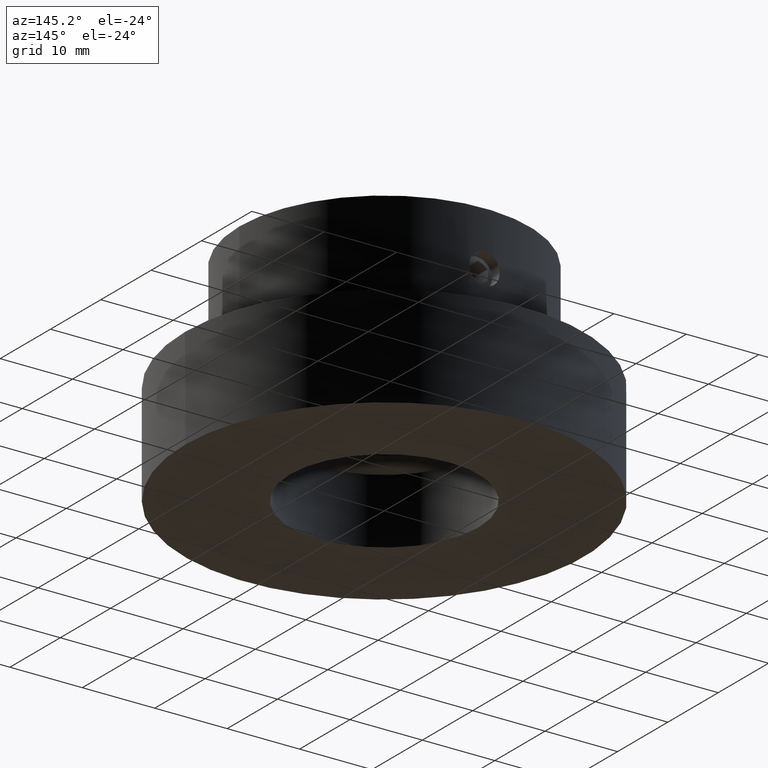
[diagram: clean part render]
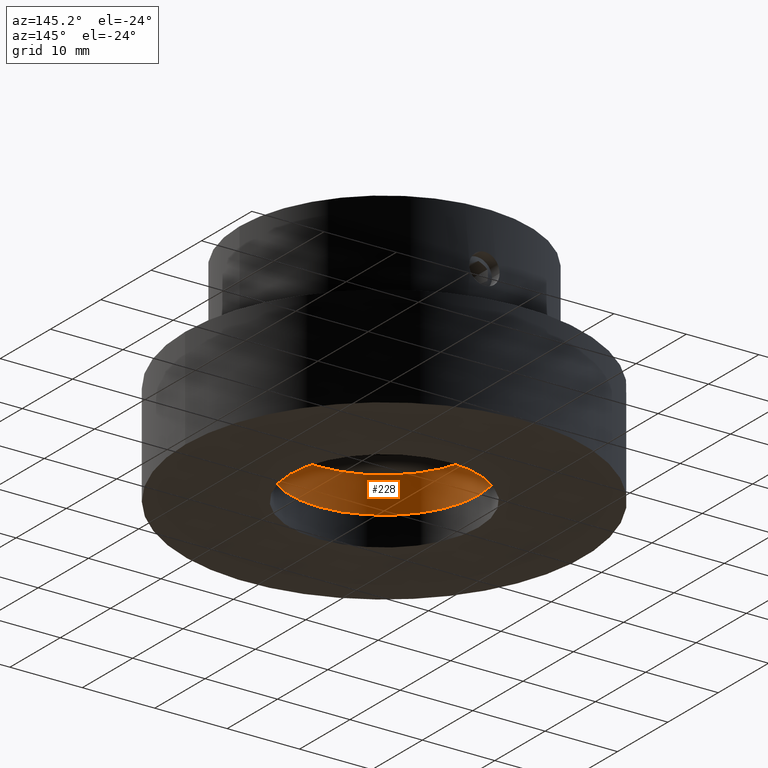
[diagram: same view with one face highlighted and labeled with its STEP entity id]
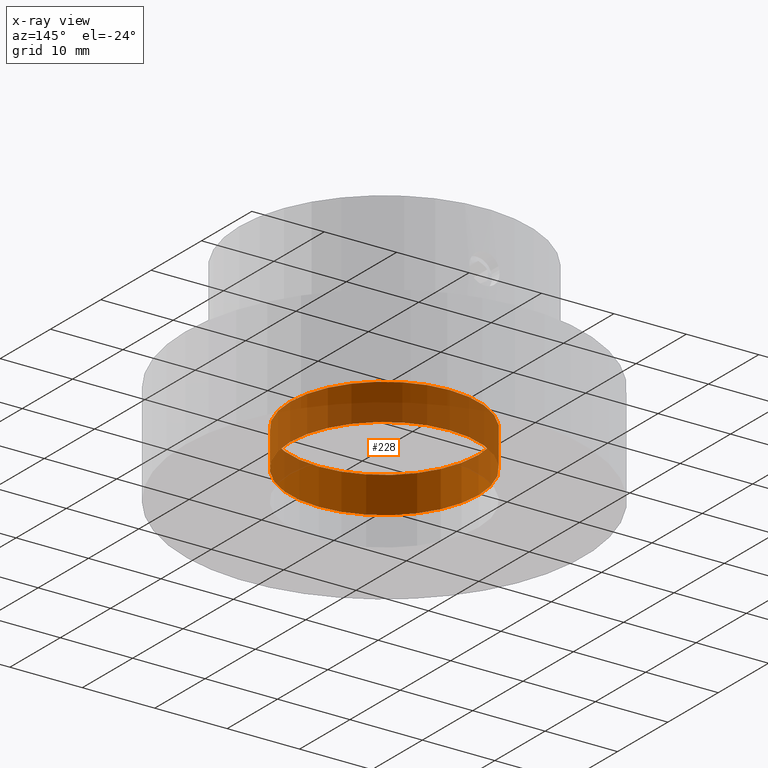
[diagram: x-ray of the same camera — body ghosted, the highlighted face saturated]
A machine part, auxiliary view. The second image highlights one B-rep face of the part: STEP entity #228.
The next image is the same camera in x-ray: the body ghosted, the highlighted face saturated — about 59% of this face is hidden behind the body in this view.
In plain terms, the highlighted cylindrical surface (bore or boss wall) has radius 13 mm, axis along (0, -0, 1).
Its self-contained STEP definition (entity closure, byte-faithful):
#228 = ADVANCED_FACE( '', ( #281, #282 ), #283, .F. );
#281 = FACE_OUTER_BOUND( '', #353, .T. );
#282 = FACE_OUTER_BOUND( '', #354, .T. );
#283 = CYLINDRICAL_SURFACE( '', #355, 13.0000000000000 );
#353 = EDGE_LOOP( '', ( #464 ) );
#354 = EDGE_LOOP( '', ( #465 ) );
#355 = AXIS2_PLACEMENT_3D( '', #466, #467, #468 );
#464 = ORIENTED_EDGE( '', *, *, #585, .T. );
#465 = ORIENTED_EDGE( '', *, *, #586, .T. );
#466 = CARTESIAN_POINT( '', ( 3.46944695195361E-015, 0.000000000000000, 9.00000000000000 ) );
#467 = DIRECTION( '', ( 0.000000000000000, -0.000000000000000, 1.00000000000000 ) );
#468 = DIRECTION( '', ( -1.00000000000000, 0.000000000000000, 0.000000000000000 ) );
#585 = EDGE_CURVE( '', #649, #649, #650, .T. );
#586 = EDGE_CURVE( '', #651, #651, #652, .F. );
#649 = VERTEX_POINT( '', #851 );
#650 = CIRCLE( '', #852, 13.0000000000000 );
#651 = VERTEX_POINT( '', #853 );
#652 = CIRCLE( '', #854, 13.0000000000000 );
#851 = CARTESIAN_POINT( '', ( 13.0000000000000, 0.000000000000000, 9.00000000000000 ) );
#852 = AXIS2_PLACEMENT_3D( '', #977, #978, #979 );
#853 = CARTESIAN_POINT( '', ( 13.0000000000000, 0.000000000000000, 4.00000000000000 ) );
#854 = AXIS2_PLACEMENT_3D( '', #980, #981, #982 );
#977 = CARTESIAN_POINT( '', ( 3.46944695195361E-015, 0.000000000000000, 9.00000000000000 ) );
#978 = DIRECTION( '', ( 0.000000000000000, 0.000000000000000, 1.00000000000000 ) );
#979 = DIRECTION( '', ( 1.00000000000000, 0.000000000000000, 0.000000000000000 ) );
#980 = CARTESIAN_POINT( '', ( 3.46944695195361E-015, 0.000000000000000, 4.00000000000000 ) );
#981 = DIRECTION( '', ( 0.000000000000000, 0.000000000000000, 1.00000000000000 ) );
#982 = DIRECTION( '', ( 1.00000000000000, 0.000000000000000, -0.000000000000000 ) );